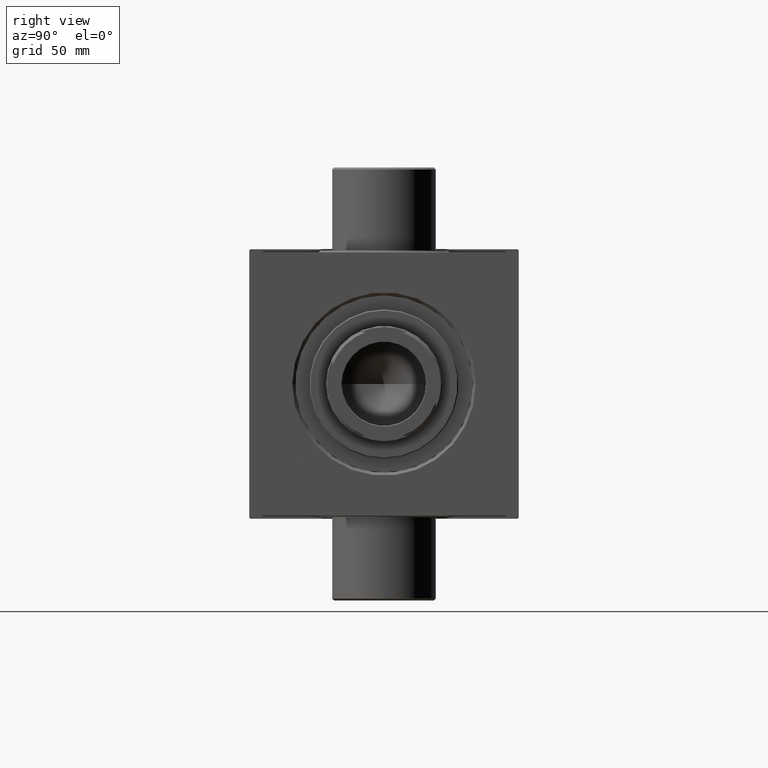
[diagram: clean part render]
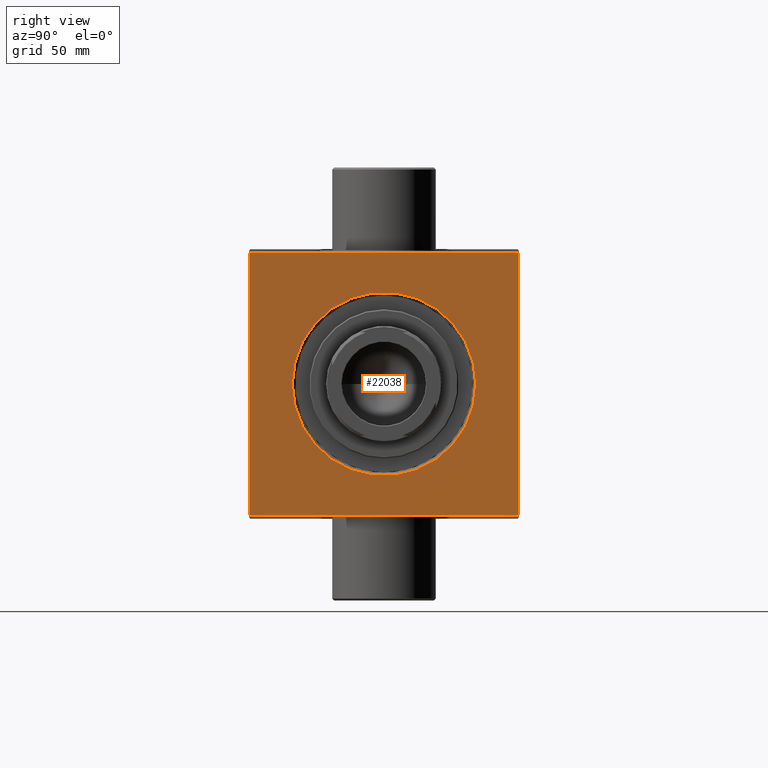
[diagram: same view with one face highlighted and labeled with its STEP entity id]
A machine part, right view. The second image highlights one B-rep face of the part: STEP entity #22038.
In plain terms, the highlighted planar face has unit normal (-1, 0, -0).
Its self-contained STEP definition (entity closure, byte-faithful):
#609 = EDGE_CURVE ( 'NONE', #7303, #3370, #16256, .T. ) ;
#959 = EDGE_CURVE ( 'NONE', #10639, #46244, #21527, .T. ) ;
#990 = DIRECTION ( 'NONE',  ( 0.000000000000000000, -0.7071067811865474617, 0.7071067811865474617 ) ) ;
#1346 = EDGE_CURVE ( 'NONE', #32106, #45027, #5804, .T. ) ;
#1534 = VECTOR ( 'NONE', #20635, 1000.000000000000000 ) ;
#1703 = LINE ( 'NONE', #34176, #1534 ) ;
#1837 = EDGE_CURVE ( 'NONE', #7303, #26910, #22539, .T. ) ;
#2605 = CARTESIAN_POINT ( 'NONE',  ( 188.0000000000000000, 63.50000000000000000, 65.00000000000000000 ) ) ;
#2893 = CARTESIAN_POINT ( 'NONE',  ( 188.0000000000000000, 63.50000000000000000, -64.49999999999994316 ) ) ;
#3370 = VERTEX_POINT ( 'NONE', #24376 ) ;
#5804 = LINE ( 'NONE', #11581, #23821 ) ;
#6138 = FACE_BOUND ( 'NONE', #18769, .T. ) ;
#6926 = CARTESIAN_POINT ( 'NONE',  ( 188.0000000000000000, -62.99999999999997158, 64.99999999999998579 ) ) ;
#6996 = EDGE_CURVE ( 'NONE', #39905, #3370, #32272, .T. ) ;
#7303 = VERTEX_POINT ( 'NONE', #16481 ) ;
#8434 = DIRECTION ( 'NONE',  ( 0.000000000000000000, -1.000000000000000000, 0.000000000000000000 ) ) ;
#8484 = DIRECTION ( 'NONE',  ( 0.000000000000000000, 0.000000000000000000, -1.000000000000000000 ) ) ;
#9824 = ORIENTED_EDGE ( 'NONE', *, *, #13068, .T. ) ;
#10392 = PLANE ( 'NONE',  #11170 ) ;
#10611 = AXIS2_PLACEMENT_3D ( 'NONE', #38584, #11895, #26122 ) ;
#10639 = VERTEX_POINT ( 'NONE', #33119 ) ;
#10690 = CARTESIAN_POINT ( 'NONE',  ( 188.0000000000000000, 0.000000000000000000, 0.000000000000000000 ) ) ;
#11170 = AXIS2_PLACEMENT_3D ( 'NONE', #35761, #34835, #14188 ) ;
#11581 = CARTESIAN_POINT ( 'NONE',  ( 188.0000000000000000, -63.50000000000000000, 64.99999999999998579 ) ) ;
#11707 = LINE ( 'NONE', #26181, #20250 ) ;
#11761 = CARTESIAN_POINT ( 'NONE',  ( 188.0000000000000000, 63.50000000000000000, -65.00000000000000000 ) ) ;
#11895 = DIRECTION ( 'NONE',  ( -1.000000000000000000, -0.000000000000000000, -0.000000000000000000 ) ) ;
#13068 = EDGE_CURVE ( 'NONE', #30888, #32106, #11707, .T. ) ;
#14188 = DIRECTION ( 'NONE',  ( -0.000000000000000000, 0.000000000000000000, 1.000000000000000000 ) ) ;
#15306 = ORIENTED_EDGE ( 'NONE', *, *, #1837, .T. ) ;
#15411 = ORIENTED_EDGE ( 'NONE', *, *, #1346, .T. ) ;
#15499 = DIRECTION ( 'NONE',  ( -0.000000000000000000, -0.7071067811865474617, -0.7071067811865474617 ) ) ;
#16256 = LINE ( 'NONE', #41148, #24533 ) ;
#16481 = CARTESIAN_POINT ( 'NONE',  ( 188.0000000000000000, 63.50000000000000000, 64.49999999999997158 ) ) ;
#16929 = ORIENTED_EDGE ( 'NONE', *, *, #33551, .T. ) ;
#17288 = EDGE_LOOP ( 'NONE', ( #15411, #16929, #18531, #39802, #34487, #15306, #26287, #9824 ) ) ;
#17337 = DIRECTION ( 'NONE',  ( -0.000000000000000000, 0.7071067811865474617, 0.7071067811865474617 ) ) ;
#18338 = CARTESIAN_POINT ( 'NONE',  ( 188.0000000000000000, -63.50000000000000000, -64.49999999999995737 ) ) ;
#18485 = CARTESIAN_POINT ( 'NONE',  ( 188.0000000000000000, -63.50000000000000000, 64.49999999999995737 ) ) ;
#18531 = ORIENTED_EDGE ( 'NONE', *, *, #40995, .F. ) ;
#18769 = EDGE_LOOP ( 'NONE', ( #34723, #27213 ) ) ;
#19792 = CARTESIAN_POINT ( 'NONE',  ( 188.0000000000000000, 62.99999999999994316, -65.00000000000000000 ) ) ;
#20250 = VECTOR ( 'NONE', #15499, 1000.000000000000114 ) ;
#20635 = DIRECTION ( 'NONE',  ( 0.000000000000000000, 0.7071067811865378028, -0.7071067811865573427 ) ) ;
#21527 = CIRCLE ( 'NONE', #29897, 44.25000000000004263 ) ;
#22038 = ADVANCED_FACE ( 'NONE', ( #6138, #45961 ), #10392, .F. ) ;
#22539 = LINE ( 'NONE', #37018, #23860 ) ;
#22738 = CIRCLE ( 'NONE', #10611, 44.25000000000004263 ) ;
#23821 = VECTOR ( 'NONE', #8484, 1000.000000000000000 ) ;
#23860 = VECTOR ( 'NONE', #990, 1000.000000000000114 ) ;
#24376 = CARTESIAN_POINT ( 'NONE',  ( 188.0000000000000000, 63.50000000000000000, -64.49999999999994316 ) ) ;
#24533 = VECTOR ( 'NONE', #40685, 1000.000000000000000 ) ;
#25096 = LINE ( 'NONE', #2605, #35600 ) ;
#26122 = DIRECTION ( 'NONE',  ( 0.000000000000000000, 0.000000000000000000, 1.000000000000000000 ) ) ;
#26181 = CARTESIAN_POINT ( 'NONE',  ( 188.0000000000000000, -63.50000000000000000, 64.49999999999995737 ) ) ;
#26287 = ORIENTED_EDGE ( 'NONE', *, *, #29022, .T. ) ;
#26910 = VERTEX_POINT ( 'NONE', #30154 ) ;
#27213 = ORIENTED_EDGE ( 'NONE', *, *, #959, .T. ) ;
#29022 = EDGE_CURVE ( 'NONE', #26910, #30888, #25096, .T. ) ;
#29897 = AXIS2_PLACEMENT_3D ( 'NONE', #10690, #44574, #41490 ) ;
#30119 = EDGE_CURVE ( 'NONE', #46244, #10639, #22738, .T. ) ;
#30154 = CARTESIAN_POINT ( 'NONE',  ( 188.0000000000000000, 62.99999999999997158, 65.00000000000000000 ) ) ;
#30538 = VECTOR ( 'NONE', #8434, 1000.000000000000000 ) ;
#30888 = VERTEX_POINT ( 'NONE', #6926 ) ;
#31088 = CARTESIAN_POINT ( 'NONE',  ( 188.0000000000000000, 0.000000000000000000, -44.25000000000004263 ) ) ;
#32106 = VERTEX_POINT ( 'NONE', #18485 ) ;
#32272 = LINE ( 'NONE', #2893, #46574 ) ;
#33119 = CARTESIAN_POINT ( 'NONE',  ( 188.0000000000000000, 5.419062086227042928E-15, 44.25000000000004263 ) ) ;
#33551 = EDGE_CURVE ( 'NONE', #45027, #41186, #1703, .T. ) ;
#34176 = CARTESIAN_POINT ( 'NONE',  ( 188.0000000000000000, -62.99999999999997158, -65.00000000000000000 ) ) ;
#34487 = ORIENTED_EDGE ( 'NONE', *, *, #609, .F. ) ;
#34723 = ORIENTED_EDGE ( 'NONE', *, *, #30119, .T. ) ;
#34835 = DIRECTION ( 'NONE',  ( -1.000000000000000000, 0.000000000000000000, -0.000000000000000000 ) ) ;
#35600 = VECTOR ( 'NONE', #38630, 1000.000000000000000 ) ;
#35673 = CARTESIAN_POINT ( 'NONE',  ( 188.0000000000000000, -62.99999999999997158, -65.00000000000000000 ) ) ;
#35761 = CARTESIAN_POINT ( 'NONE',  ( 188.0000000000000000, 0.000000000000000000, 0.000000000000000000 ) ) ;
#37018 = CARTESIAN_POINT ( 'NONE',  ( 188.0000000000000000, 62.99999999999997158, 65.00000000000000000 ) ) ;
#38584 = CARTESIAN_POINT ( 'NONE',  ( 188.0000000000000000, 0.000000000000000000, 0.000000000000000000 ) ) ;
#38630 = DIRECTION ( 'NONE',  ( 0.000000000000000000, -1.000000000000000000, -1.092739197465705287E-16 ) ) ;
#39802 = ORIENTED_EDGE ( 'NONE', *, *, #6996, .T. ) ;
#39905 = VERTEX_POINT ( 'NONE', #19792 ) ;
#40685 = DIRECTION ( 'NONE',  ( 0.000000000000000000, 0.000000000000000000, -1.000000000000000000 ) ) ;
#40995 = EDGE_CURVE ( 'NONE', #39905, #41186, #44224, .T. ) ;
#41148 = CARTESIAN_POINT ( 'NONE',  ( 188.0000000000000000, 63.50000000000000000, 65.00000000000000000 ) ) ;
#41186 = VERTEX_POINT ( 'NONE', #35673 ) ;
#41490 = DIRECTION ( 'NONE',  ( 0.000000000000000000, 0.000000000000000000, 1.000000000000000000 ) ) ;
#44224 = LINE ( 'NONE', #11761, #30538 ) ;
#44574 = DIRECTION ( 'NONE',  ( -1.000000000000000000, -0.000000000000000000, -0.000000000000000000 ) ) ;
#45027 = VERTEX_POINT ( 'NONE', #18338 ) ;
#45961 = FACE_OUTER_BOUND ( 'NONE', #17288, .T. ) ;
#46244 = VERTEX_POINT ( 'NONE', #31088 ) ;
#46574 = VECTOR ( 'NONE', #17337, 1000.000000000000114 ) ;